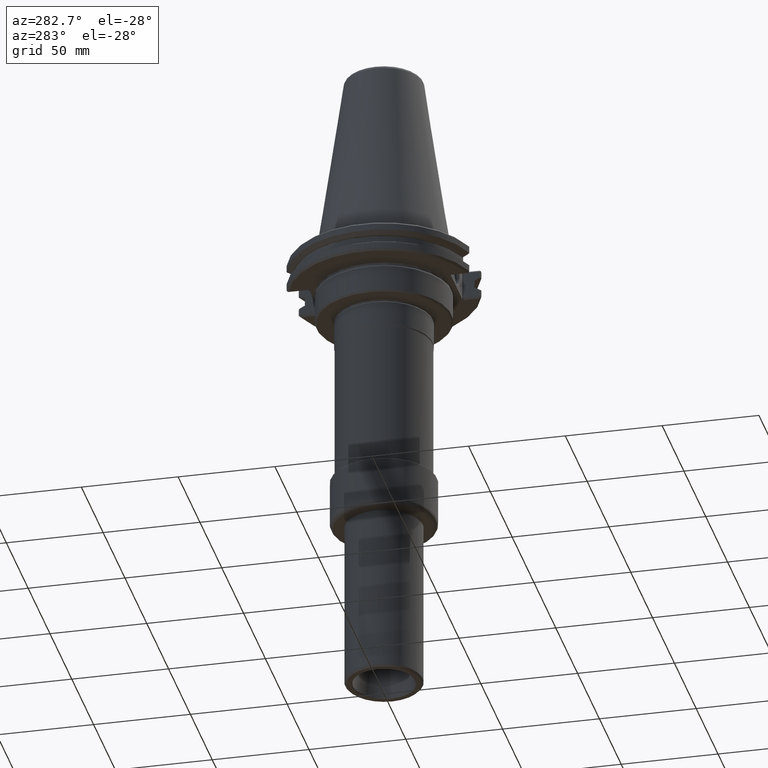
[diagram: clean part render]
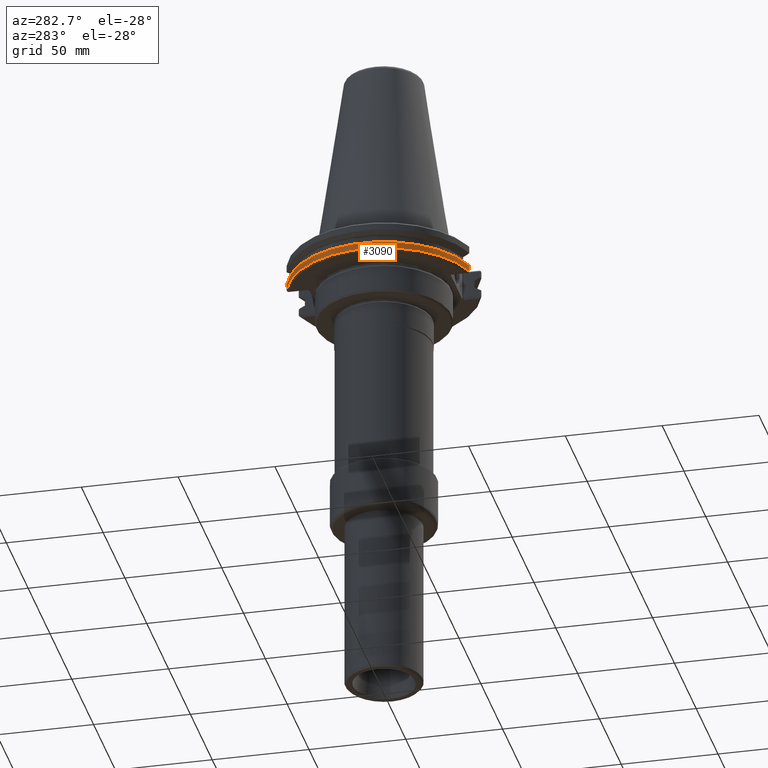
[diagram: same view with one face highlighted and labeled with its STEP entity id]
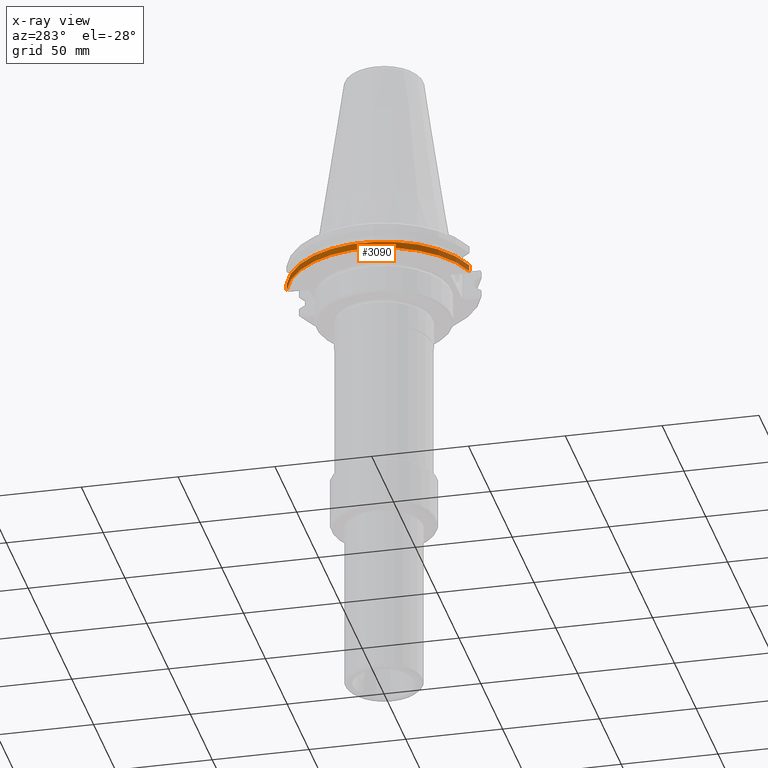
[diagram: x-ray of the same camera — body ghosted, the highlighted face saturated]
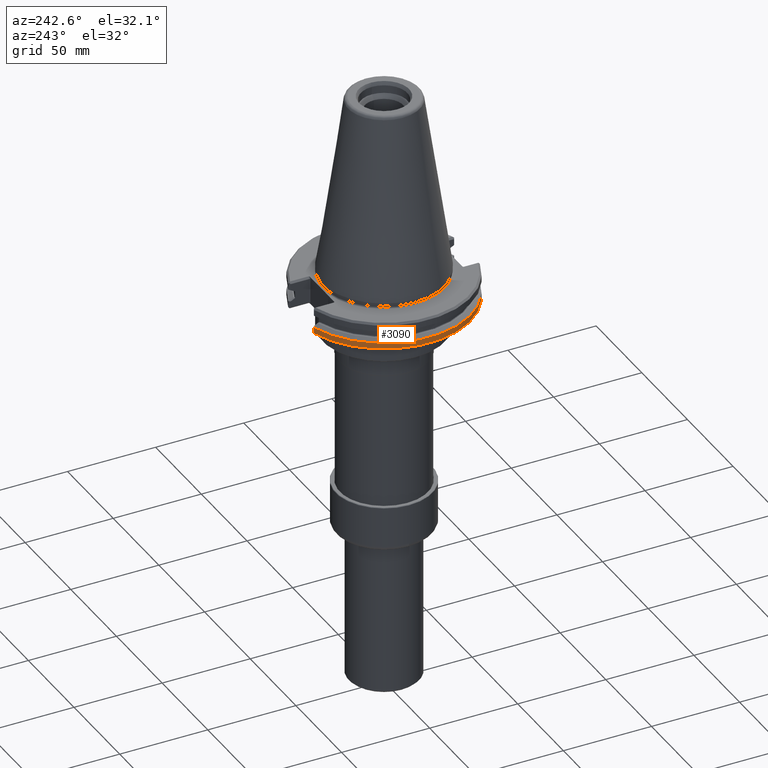
[diagram: same view with one face highlighted and labeled with its STEP entity id]
A machine part, auxiliary view. The second image highlights one B-rep face of the part: STEP entity #3090.
The next image is the same camera in x-ray: the body ghosted, the highlighted face saturated — about 0% of this face is hidden behind the body in this view.
A second angle (auxiliary view) of the same face is appended — the face is thin or edge-on in the first view.
In plain terms, the highlighted cylindrical surface (partial cylindrical patch) has radius 49.21 mm, axis along (0, 0, 1).
Its self-contained STEP definition (entity closure, byte-faithful):
#111=LINE('',#4445,#184);
#115=LINE('',#4464,#188);
#184=VECTOR('',#3755,1000.);
#188=VECTOR('',#3765,1000.);
#278=CYLINDRICAL_SURFACE('',#3302,49.21);
#571=ORIENTED_EDGE('',*,*,#957,.T.);
#572=ORIENTED_EDGE('',*,*,#1012,.T.);
#573=ORIENTED_EDGE('',*,*,#1018,.F.);
#574=ORIENTED_EDGE('',*,*,#1019,.F.);
#957=EDGE_CURVE('',#1210,#1209,#1379,.T.);
#1012=EDGE_CURVE('',#1209,#1247,#111,.T.);
#1018=EDGE_CURVE('',#1251,#1247,#1398,.T.);
#1019=EDGE_CURVE('',#1210,#1251,#115,.T.);
#1209=VERTEX_POINT('',#4304);
#1210=VERTEX_POINT('',#4306);
#1247=VERTEX_POINT('',#4444);
#1251=VERTEX_POINT('',#4463);
#1379=CIRCLE('',#3260,49.21);
#1398=CIRCLE('',#3303,49.21);
#1544=EDGE_LOOP('',(#571,#572,#573,#574));
#1777=FACE_BOUND('',#1544,.T.);
#3090=ADVANCED_FACE('',(#1777),#278,.T.);
#3260=AXIS2_PLACEMENT_3D('',#4305,#3648,#3649);
#3302=AXIS2_PLACEMENT_3D('',#4461,#3761,#3762);
#3303=AXIS2_PLACEMENT_3D('',#4462,#3763,#3764);
#3648=DIRECTION('',(0.,0.,1.));
#3649=DIRECTION('',(1.,0.,0.));
#3755=DIRECTION('',(0.,0.,1.));
#3761=DIRECTION('',(0.,0.,1.));
#3762=DIRECTION('',(1.,0.,0.));
#3763=DIRECTION('',(0.,0.,1.));
#3764=DIRECTION('',(1.,0.,0.));
#3765=DIRECTION('',(0.,0.,1.));
#4304=CARTESIAN_POINT('',(-13.9428819715152,-47.1934332543035,-18.04));
#4305=CARTESIAN_POINT('',(0.,0.,-18.04));
#4306=CARTESIAN_POINT('',(-14.110461933227,47.1435993962166,-18.04));
#4444=CARTESIAN_POINT('',(-13.9428819715151,-47.1934332543035,-14.6547233934025));
#4445=CARTESIAN_POINT('',(-13.9428819715152,-47.1934332543035,60.));
#4461=CARTESIAN_POINT('',(0.,0.,60.));
#4462=CARTESIAN_POINT('',(0.,0.,-14.6547233934025));
#4463=CARTESIAN_POINT('',(-14.110461933227,47.1435993962166,-14.6547233934025));
#4464=CARTESIAN_POINT('',(-14.110461933227,47.1435993962166,60.));